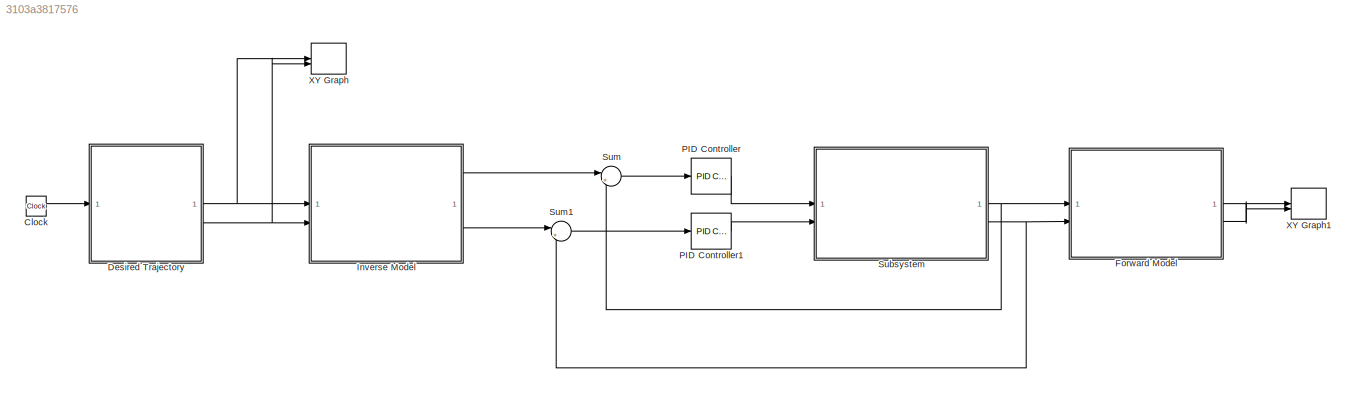
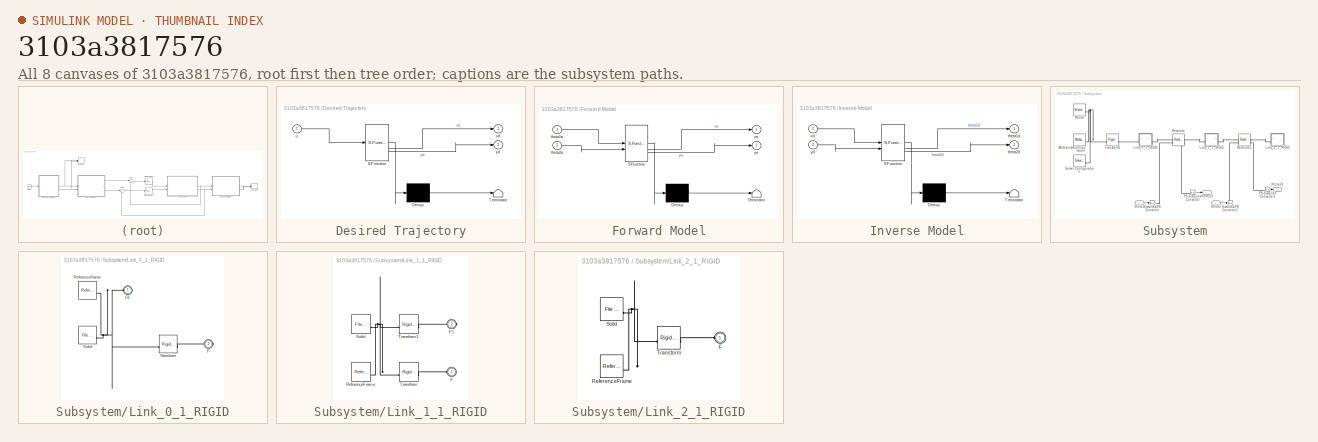
[diagram: thumbnail index - all 8 canvases of the model, root first then tree order]
MODEL slx_3103a3817576
KIND model
CONFIG AbsTol = auto
CONFIG EnableMultiTasking = off
CONFIG FixedStep = auto
CONFIG MaxStep = auto
CONFIG MinStep = auto
CONFIG RelTol = 1e-3
CONFIG SampleTimeConstraint = Unconstrained
CONFIG SolverName = VariableStepAuto
CONFIG StartTime = 0.0
CONFIG StopTime = 10.0
WORKSPACE source: external: MATLAB File  (data not in archive)
BLOCK [Clock] Clock
BLOCK [SubSystem] Desired Trajectory
  ErrorFcn = Stateflow.Translate.translate
  PermitHierarchicalResolution = ExplicitOnly
  SFBlockType = MATLAB Function
  TreatAsAtomicUnit = on
BLOCK [Demux] Desired Trajectory/ Demux 
  Outputs = 1
BLOCK [S-Function] Desired Trajectory/ SFunction 
  EnableBusSupport = on
  FunctionName = sf_sfun
  PortCounts = [1 3]
  SFcnIsStateOwnerBlock = off
  SFunctionDeploymentMode = off
  Tag = Stateflow S-Function 2
BLOCK [Terminator] Desired Trajectory/ Terminator 
BLOCK [Inport] Desired Trajectory/u
BLOCK [Outport] Desired Trajectory/xd
BLOCK [Outport] Desired Trajectory/yd
  Port = 2
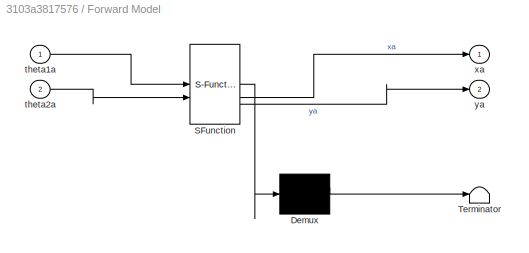
BLOCK [SubSystem] Forward Model
  ErrorFcn = Stateflow.Translate.translate
  PermitHierarchicalResolution = ExplicitOnly
  SFBlockType = MATLAB Function
  TreatAsAtomicUnit = on
BLOCK [Demux] Forward Model/ Demux 
  Outputs = 1
BLOCK [S-Function] Forward Model/ SFunction 
  EnableBusSupport = on
  FunctionName = sf_sfun
  PortCounts = [2 3]
  SFcnIsStateOwnerBlock = off
  SFunctionDeploymentMode = off
  Tag = Stateflow S-Function 3
BLOCK [Terminator] Forward Model/ Terminator 
BLOCK [Inport] Forward Model/theta1a
BLOCK [Inport] Forward Model/theta2a
  Port = 2
BLOCK [Outport] Forward Model/xa
BLOCK [Outport] Forward Model/ya
  Port = 2
BLOCK [SubSystem] Inverse Model
  ErrorFcn = Stateflow.Translate.translate
  PermitHierarchicalResolution = ExplicitOnly
  SFBlockType = MATLAB Function
  TreatAsAtomicUnit = on
BLOCK [Demux] Inverse Model/ Demux 
  Outputs = 1
BLOCK [S-Function] Inverse Model/ SFunction 
  EnableBusSupport = on
  FunctionName = sf_sfun
  PortCounts = [2 3]
  SFcnIsStateOwnerBlock = off
  SFunctionDeploymentMode = off
  Tag = Stateflow S-Function 1
BLOCK [Terminator] Inverse Model/ Terminator 
BLOCK [Outport] Inverse Model/theta1d
BLOCK [Outport] Inverse Model/theta2d
  Port = 2
BLOCK [Inport] Inverse Model/xd
BLOCK [Inport] Inverse Model/yd
  Port = 2
BLOCK [Reference] PID Controller  REF=slpidlib/PID Controller
  LibrarySourceBlock = simulink/Continuous/PID Controller
  SourceBlock = slpidlib/PID Controller
  SourceType = PID 1dof
BLOCK [Reference] PID Controller1  REF=slpidlib/PID Controller
  LibrarySourceBlock = simulink/Continuous/PID Controller
  SourceBlock = slpidlib/PID Controller
  SourceType = PID 1dof
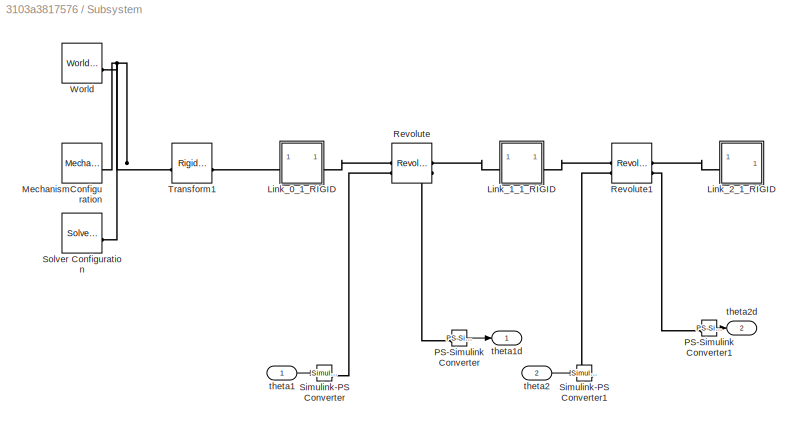
BLOCK [SubSystem] Subsystem
BLOCK [SubSystem] Subsystem/Link_0_1_RIGID
BLOCK [PMIOPort] Subsystem/Link_0_1_RIGID/F
  Port = 2
  Side = Right
BLOCK [PMIOPort] Subsystem/Link_0_1_RIGID/F2
  Side = Left
BLOCK [Reference] Subsystem/Link_0_1_RIGID/ReferenceFrame  REF=sm_lib/Frames and
Transforms/Reference
Frame
  SourceBlock = sm_lib/Frames and\nTransforms/Reference\nFrame
  SourceType = Reference\nFrame
BLOCK [Reference] Subsystem/Link_0_1_RIGID/Solid  REF=sm_lib/Body Elements/File Solid
  SourceBlock = sm_lib/Body Elements/File Solid
  SourceType = File Solid
BLOCK [Reference] Subsystem/Link_0_1_RIGID/Transform  REF=sm_lib/Frames and
Transforms/Rigid
Transform
  SourceBlock = sm_lib/Frames and\nTransforms/Rigid\nTransform
  SourceType = Rigid\nTransform
BLOCK [SubSystem] Subsystem/Link_1_1_RIGID
BLOCK [PMIOPort] Subsystem/Link_1_1_RIGID/F
  Side = Left
BLOCK [PMIOPort] Subsystem/Link_1_1_RIGID/F1
  Port = 2
  Side = Right
BLOCK [Reference] Subsystem/Link_1_1_RIGID/ReferenceFrame  REF=sm_lib/Frames and
Transforms/Reference
Frame
  SourceBlock = sm_lib/Frames and\nTransforms/Reference\nFrame
  SourceType = Reference\nFrame
BLOCK [Reference] Subsystem/Link_1_1_RIGID/Solid  REF=sm_lib/Body Elements/File Solid
  SourceBlock = sm_lib/Body Elements/File Solid
  SourceType = File Solid
BLOCK [Reference] Subsystem/Link_1_1_RIGID/Transform  REF=sm_lib/Frames and
Transforms/Rigid
Transform
  SourceBlock = sm_lib/Frames and\nTransforms/Rigid\nTransform
  SourceType = Rigid\nTransform
BLOCK [Reference] Subsystem/Link_1_1_RIGID/Transform1  REF=sm_lib/Frames and
Transforms/Rigid
Transform
  SourceBlock = sm_lib/Frames and\nTransforms/Rigid\nTransform
  SourceType = Rigid\nTransform
BLOCK [SubSystem] Subsystem/Link_2_1_RIGID
BLOCK [PMIOPort] Subsystem/Link_2_1_RIGID/F
  Side = Left
BLOCK [Reference] Subsystem/Link_2_1_RIGID/ReferenceFrame  REF=sm_lib/Frames and
Transforms/Reference
Frame
  SourceBlock = sm_lib/Frames and\nTransforms/Reference\nFrame
  SourceType = Reference\nFrame
BLOCK [Reference] Subsystem/Link_2_1_RIGID/Solid  REF=sm_lib/Body Elements/File Solid
  SourceBlock = sm_lib/Body Elements/File Solid
  SourceType = File Solid
BLOCK [Reference] Subsystem/Link_2_1_RIGID/Transform  REF=sm_lib/Frames and
Transforms/Rigid
Transform
  SourceBlock = sm_lib/Frames and\nTransforms/Rigid\nTransform
  SourceType = Rigid\nTransform
BLOCK [Reference] Subsystem/MechanismConfiguration  REF=sm_lib/Utilities/Mechanism
Configuration
  SourceBlock = sm_lib/Utilities/Mechanism\nConfiguration
  SourceType = Mechanism\nConfiguration
BLOCK [Reference] Subsystem/PS-Simulink Converter  REF=nesl_utility/PS-Simulink
Converter
  SourceBlock = nesl_utility/PS-Simulink\nConverter
  SourceType = PS-Simulink\nConverter
BLOCK [Reference] Subsystem/PS-Simulink Converter1  REF=nesl_utility/PS-Simulink
Converter
  SourceBlock = nesl_utility/PS-Simulink\nConverter
  SourceType = PS-Simulink\nConverter
BLOCK [Reference] Subsystem/Revolute  REF=sm_lib/Joints/Revolute Joint
  SourceBlock = sm_lib/Joints/Revolute Joint
  SourceType = Revolute Joint
BLOCK [Reference] Subsystem/Revolute1  REF=sm_lib/Joints/Revolute Joint
  SourceBlock = sm_lib/Joints/Revolute Joint
  SourceType = Revolute Joint
BLOCK [Reference] Subsystem/Simulink-PS Converter  REF=nesl_utility/Simulink-PS
Converter
  SourceBlock = nesl_utility/Simulink-PS\nConverter
  SourceType = Simulink-PS\nConverter
BLOCK [Reference] Subsystem/Simulink-PS Converter1  REF=nesl_utility/Simulink-PS
Converter
  SourceBlock = nesl_utility/Simulink-PS\nConverter
  SourceType = Simulink-PS\nConverter
BLOCK [Reference] Subsystem/Solver Configuration  REF=nesl_utility/Solver
Configuration
  SourceBlock = nesl_utility/Solver\nConfiguration
  SourceType = Solver\nConfiguration
BLOCK [Reference] Subsystem/Transform1  REF=sm_lib/Frames and
Transforms/Rigid
Transform
  SourceBlock = sm_lib/Frames and\nTransforms/Rigid\nTransform
  SourceType = Rigid\nTransform
BLOCK [Reference] Subsystem/World  REF=sm_lib/Frames and
Transforms/World Frame
  SourceBlock = sm_lib/Frames and\nTransforms/World Frame
  SourceType = World Frame
BLOCK [Inport] Subsystem/theta1
BLOCK [Outport] Subsystem/theta1d
BLOCK [Inport] Subsystem/theta2
  Port = 2
BLOCK [Outport] Subsystem/theta2d
  Port = 2
BLOCK [Sum] Sum
  Inputs = |+-
BLOCK [Sum] Sum1
  Inputs = |+-
BLOCK [Record] XY Graph
  CompatibilityTag = XY
  FileSettingsInternal = {"entries":[{"content":{"excelSettings":{"content":{},"type":"Streamout.ExcelSettings"}},"type":"Streamout.FileSettingStorage","uuid":""}],"packageUris":["http:\/\/schema.mathworks.com\/mf0\/streamout_blocks\/R2020a"],"version":"1.0"}
  Layout = [1 1]
  SignalsInternal = {"entries":[{"content":{"signals":[{"content":{"blockPath":[],"dimensions":[1],"domain":"","lineColor":"#a2142f","plots":[1],"port":1,"signalID":16,"signalName":"XY Graph:1"},"type":"RecordBlkView.Signal","uuid":""},{"content":{"blockPath":[],"dimensions":[1],"domain":"","lineColor":"#139fff","plots":[1],"port":2,"signalID":19,"signalName":"XY Graph:2"},"type":"RecordBlkView.Signal","uuid":""}]},"...<+142ch>
  VisualizationBindings = {"xyplotplugin":{"info":[{"series":[{"bindingParametersList":[{"parameter":"X-Axis","signalID":16,"signalName":"XY Graph:1"},{"parameter":"Y-Axis","signalID":19,"signalName":"XY Graph:2"}],"seriesID":54333}],"subplotID":1}]}}
BLOCK [Record] XY Graph1
  CompatibilityTag = XY
  FileSettingsInternal = {"entries":[{"content":{"excelSettings":{"content":{},"type":"Streamout.ExcelSettings"}},"type":"Streamout.FileSettingStorage","uuid":""}],"packageUris":["http:\/\/schema.mathworks.com\/mf0\/streamout_blocks\/R2020a"],"version":"1.0"}
  Layout = [1 1]
  SignalsInternal = {"entries":[{"content":{"signals":[{"content":{"blockPath":[],"dimensions":[1],"domain":"","lineColor":"#a2142f","plots":[1],"port":1,"signalID":8,"signalName":"XY Graph:1"},"type":"RecordBlkView.Signal","uuid":""},{"content":{"blockPath":[],"dimensions":[1],"domain":"","lineColor":"#139fff","plots":[1],"port":2,"signalID":11,"signalName":"XY Graph:2"},"type":"RecordBlkView.Signal","uuid":""}]},"t...<+141ch>
  VisualizationBindings = {"xyplotplugin":{"info":[{"series":[{"bindingParametersList":[{"parameter":"X-Axis","signalID":8,"signalName":"XY Graph:1"},{"parameter":"Y-Axis","signalID":11,"signalName":"XY Graph:2"}],"seriesID":24969}],"subplotID":1}]}}
LINE Clock:1 -> Desired Trajectory:1
NET Desired Trajectory:1 -> Inverse Model:1, XY Graph:1
NET Desired Trajectory:2 -> Inverse Model:2, XY Graph:2
LINE Forward Model:1 -> XY Graph1:1
LINE Forward Model:2 -> XY Graph1:2
LINE Inverse Model:1 -> Sum:1
LINE Inverse Model:2 -> Sum1:1
LINE PID Controller1:1 -> Subsystem:2
LINE PID Controller:1 -> Subsystem:1
LINE Subsystem/PS-Simulink Converter1:1 -> Subsystem/theta2d:1
LINE Subsystem/PS-Simulink Converter:1 -> Subsystem/theta1d:1
LINE Subsystem/theta1:1 -> Subsystem/Simulink-PS Converter:1
LINE Subsystem/theta2:1 -> Subsystem/Simulink-PS Converter1:1
NET Subsystem:1 -> Forward Model:1, Sum:2
NET Subsystem:2 -> Forward Model:2, Sum1:2
LINE Sum1:1 -> PID Controller1:1
LINE Sum:1 -> PID Controller:1
PNET net1: Subsystem/Link_0_1_RIGID/F2:RConn1 -- Subsystem/Link_0_1_RIGID/ReferenceFrame:RConn1 -- Subsystem/Link_0_1_RIGID/Solid:RConn1 -- Subsystem/Link_0_1_RIGID/Transform:LConn1
PLINE Subsystem/Link_0_1_RIGID/F:RConn1 -- Subsystem/Link_0_1_RIGID/Transform:RConn1
PLINE Subsystem/Link_0_1_RIGID:LConn1 -- Subsystem/Transform1:RConn1
PLINE Subsystem/Link_0_1_RIGID:RConn1 -- Subsystem/Revolute:LConn1
PLINE Subsystem/Link_1_1_RIGID/F1:RConn1 -- Subsystem/Link_1_1_RIGID/Transform1:RConn1
PLINE Subsystem/Link_1_1_RIGID/F:RConn1 -- Subsystem/Link_1_1_RIGID/Transform:RConn1
PNET net2: Subsystem/Link_1_1_RIGID/ReferenceFrame:RConn1 -- Subsystem/Link_1_1_RIGID/Solid:RConn1 -- Subsystem/Link_1_1_RIGID/Transform1:LConn1 -- Subsystem/Link_1_1_RIGID/Transform:LConn1
PLINE Subsystem/Link_1_1_RIGID:LConn1 -- Subsystem/Revolute:RConn1
PLINE Subsystem/Link_1_1_RIGID:RConn1 -- Subsystem/Revolute1:LConn1
PLINE Subsystem/Link_2_1_RIGID/F:RConn1 -- Subsystem/Link_2_1_RIGID/Transform:RConn1
PNET net3: Subsystem/Link_2_1_RIGID/ReferenceFrame:RConn1 -- Subsystem/Link_2_1_RIGID/Solid:RConn1 -- Subsystem/Link_2_1_RIGID/Transform:LConn1
PLINE Subsystem/Link_2_1_RIGID:LConn1 -- Subsystem/Revolute1:RConn1
PNET net4: Subsystem/MechanismConfiguration:RConn1 -- Subsystem/Solver Configuration:RConn1 -- Subsystem/Transform1:LConn1 -- Subsystem/World:RConn1
PLINE Subsystem/PS-Simulink Converter1:LConn1 -- Subsystem/Revolute1:RConn2
PLINE Subsystem/PS-Simulink Converter:LConn1 -- Subsystem/Revolute:RConn2
PLINE Subsystem/Revolute1:LConn2 -- Subsystem/Simulink-PS Converter1:RConn1
PLINE Subsystem/Revolute:LConn2 -- Subsystem/Simulink-PS Converter:RConn1
note: NET lines group one-source signal fan-out (src -> all destinations, sorted); 1:1 wires keep LINE; PNET lines group multi-terminal physical nets as a canonical sorted terminal list (undirected conserving connections); 2-terminal nets keep the pairwise PLINE form
CHART Desired Trajectory states=1 transitions=1
  STATE_LABEL 'eML_blk_kernel()'
  STATE_LABEL 'SCRIPT:\nfunction [xd,yd] = Desired_Traj(u)\n\nxd = 1+0.5*sin((2*pi/5)*u+pi/2);\nyd = 1+0.5*cos((2*pi/5)*u+pi/2);\n'
CHART Forward Model states=1 transitions=1
  STATE_LABEL 'eML_blk_kernel()'
  STATE_LABEL 'SCRIPT:\nfunction [xa,ya] = Forward_Model(theta1a,theta2a)\nl1 = 1;\nl2 = 1;\nxa = l1*cos(theta1a)+l2*cos(theta1a+theta2a);\nya = l1*sin(theta1a)+l2*sin(theta1a+theta2a);\n'
CHART Inverse Model states=1 transitions=1
  STATE_LABEL 'eML_blk_kernel()'
  STATE_LABEL 'SCRIPT:\nfunction [theta1d,theta2d] = Inverse_Model(xd,yd)\nl1 = 1;\nl2 = 1;\ntheta2d = acos((xd^2+yd^2-l1^2-l2^2)/(2*l1*l2));\ntheta1d = atan(yd/xd)-atan((l2*sin(theta2d))/(l1+l2*cos(theta2d)));\n\n'
CHART  states=0 transitions=0
CHART  states=0 transitions=0
CHART  states=0 transitions=0
